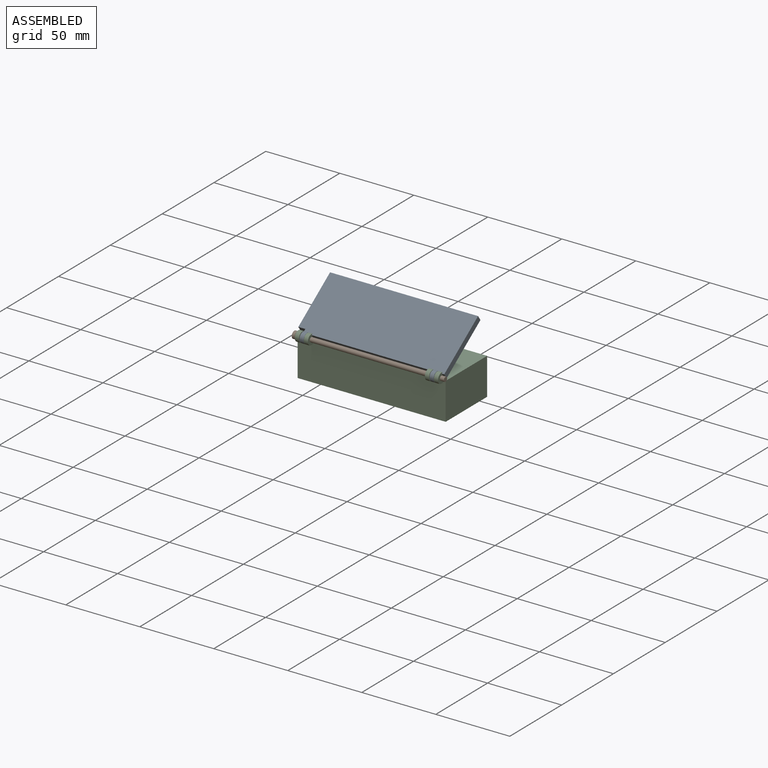
[diagram: assembled view]
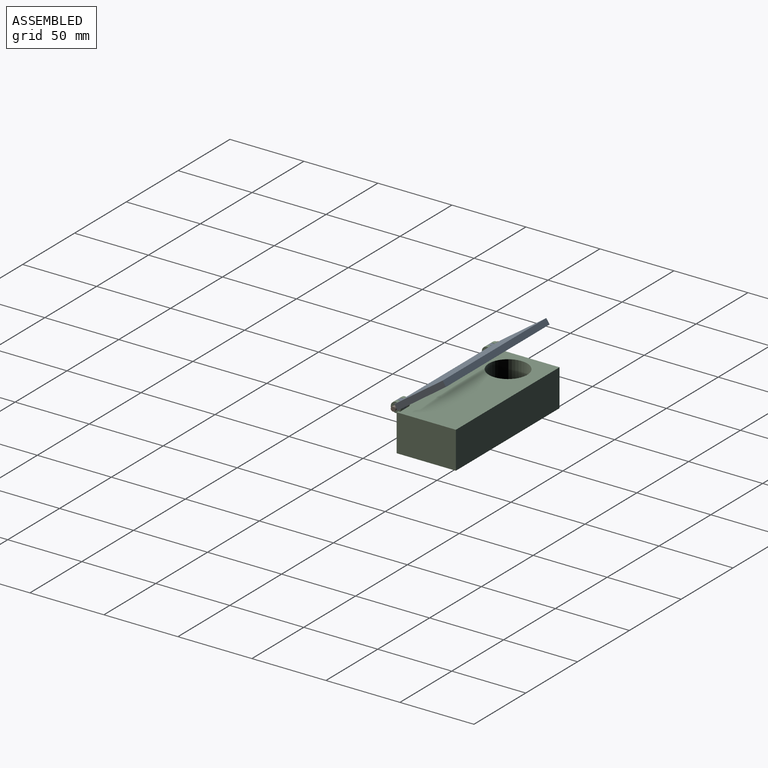
[diagram: assembled view, second angle]
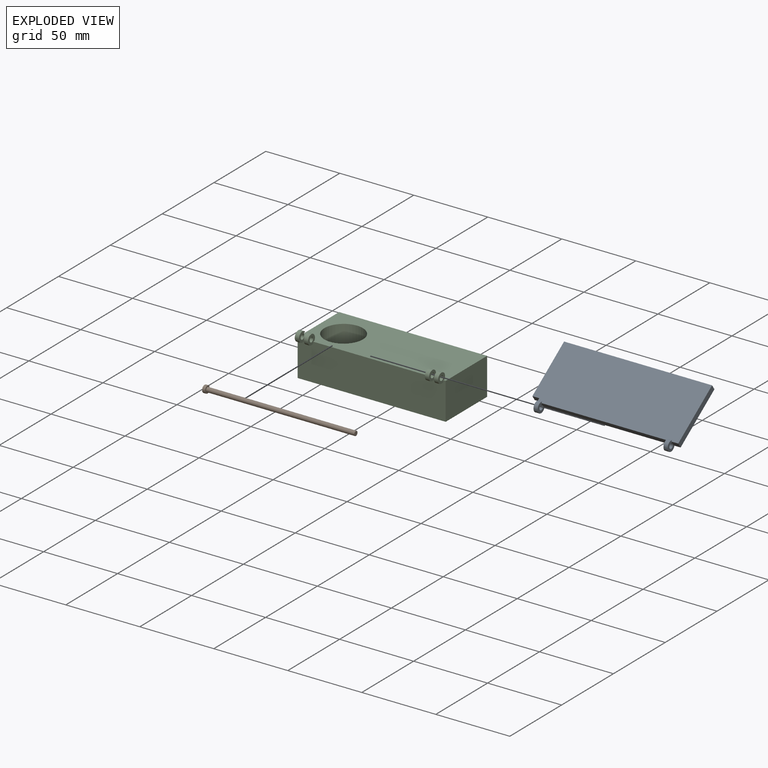
[diagram: exploded view]
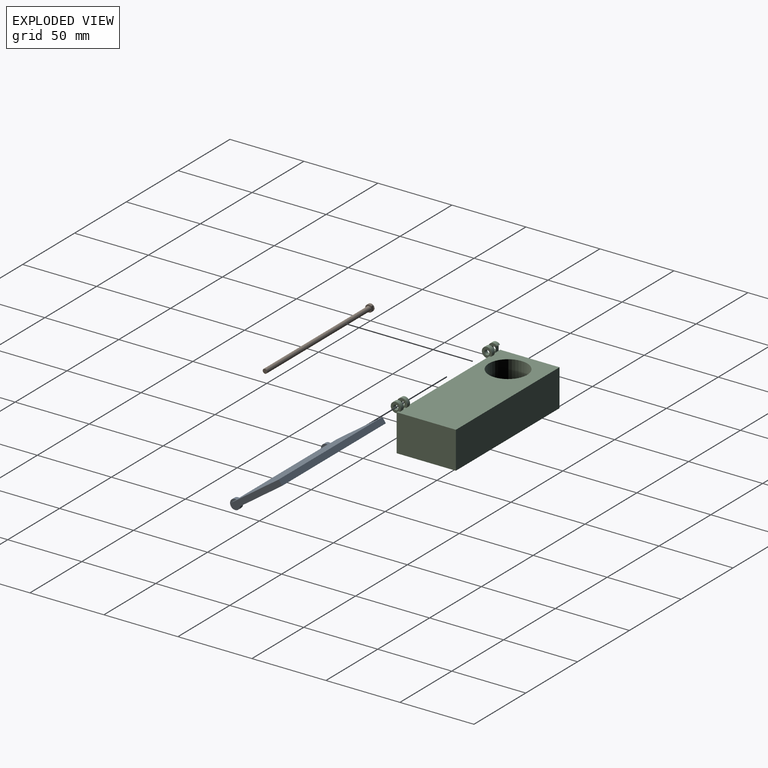
[diagram: exploded view, second angle]
ASSEMBLY  parts=3 mates=2
PART A: 16 faces, bbox 100x45.1x6.8 mm
  f0: plane 100x40mm, normal (0,0,1), area 3982.9mm2, adj f1,f2,f3,f4,f5,f7,f8,f9
  f1: plane 4.7x4mm, normal (0,-1,0), area 18.8mm2, adj f0,f2,f6,f13
  f2: plane 40x4mm, normal (1,0,0), area 160mm2, adj f0,f1,f3,f6
  f3: plane 100x4mm, normal (0,1,0), area 400mm2, adj f0,f2,f4,f6
  f4: plane 37.5x4mm, normal (-1,0,0), area 150mm2, adj f0,f3,f6,f15
  f5: plane 85x4mm, normal (0,-1,0), area 340mm2, adj f0,f6,f8,f12
  f6: plane 100x40mm, normal (0,0,-1), area 3982mm2, adj f1,f2,f3,f4,f5,f7,f8,f9
  f7: cylinder r=3.4mm len=6.8mm, axis (-1,0,0), area 47.8mm2, adj f0,f6,f8,f9
  f8: plane 6.8x6.23mm, normal (1,0,0), area 21.8mm2, adj f0,f5,f6,f7,f10
  f9: plane 7.61x6.8mm, normal (-1,0,0), area 31.8mm2, adj f0,f6,f7,f10,f15
  f10: cylinder r=1.65mm len=3.3mm, axis (-1,0,0), area 29mm2, adj f8,f9
  f11: cylinder r=3.4mm len=6.8mm, axis (1,0,0), area 47.8mm2, adj f0,f6,f12,f13
  f12: plane 6.8x6.23mm, normal (-1,0,0), area 21.8mm2, adj f0,f5,f6,f11,f14
  f13: plane 6.8x6.23mm, normal (1,0,0), area 21.8mm2, adj f0,f1,f6,f11,f14
  f14: cylinder r=1.65mm len=3.3mm, axis (1,0,0), area 29mm2, adj f12,f13
  f15: plane 4.7x4mm, normal (0,-1,0), area 18.8mm2, adj f0,f4,f6,f9
PART B: 7 faces, bbox 102.2x4.9x4.9 mm
  f0: cylinder r=2.43mm len=4.85mm, axis (1,0,0), area 24.3mm2, adj f1,f2,f5,f6
  f1: plane 4.85x4.85mm, normal (-1,0,0), area 18.5mm2, adj f0
  f2: plane 4.85x4.13mm, normal (1,0,0), area 9.5mm2, adj f0,f3,f6
  f3: cylinder r=1.53mm len=100.2mm, axis (-1,0,0), area 960.7mm2, adj f2,f4
  f4: plane 3.05x3.05mm, normal (1,0,0), area 7.3mm2, adj f3
  f5: plane 3.45x0.72mm, normal (1,0,0), area 1.7mm2, adj f0,f6
  f6: plane 3.45x1.6mm, normal (0,1,0), area 5.5mm2, adj f0,f2,f5
PART C: 26 faces, bbox 100x45.1x30.3 mm
  f0: plane 40x25mm, normal (-1,0,0), area 1000mm2, adj f1,f3,f4,f5
  f1: plane 100x25mm, normal (0,-1,0), area 2488.2mm2, adj f0,f2,f4,f5,f8,f9,f10,f12
  f2: plane 40x25mm, normal (1,0,0), area 1000mm2, adj f1,f3,f4,f5
  f3: plane 100x25mm, normal (0,1,0), area 2500mm2, adj f0,f2,f4,f5
  f4: plane 100x40mm, normal (0,0,-1), area 4000mm2, adj f0,f1,f2,f3
  f5: plane 100x40mm, normal (0,0,1), area 3459.6mm2, adj f0,f1,f2,f3,f6,f12,f13,f14
  f6: cylinder r=13mm len=26mm, axis (0,0,1), area 1633.6mm2, adj f5,f7
  f7: plane 26x26mm, normal (0,0,1), area 530.9mm2, adj f6
  f8: cylinder r=3.4mm len=6.8mm, axis (-1,0,0), area 43.5mm2, adj f1,f9,f10,f25
  f9: plane 6.8x6.06mm, normal (1,0,0), area 21.2mm2, adj f1,f8,f11,f24,f25
  f10: plane 6.8x6.06mm, normal (-1,0,0), area 21.2mm2, adj f1,f8,f11,f24,f25
  f11: cylinder r=1.65mm len=3.3mm, axis (-1,0,0), area 29mm2, adj f9,f10
  f12: cylinder r=3.4mm len=6.8mm, axis (-1,0,0), area 55.5mm2, adj f1,f5,f13,f14
  f13: plane 6.8x6.8mm, normal (1,0,0), area 27.1mm2, adj f1,f5,f12,f15
  f14: plane 6.8x6.8mm, normal (-1,0,0), area 27.1mm2, adj f1,f5,f12,f15
  f15: cylinder r=1.65mm len=3.3mm, axis (-1,0,0), area 29mm2, adj f13,f14
  f16: cylinder r=3.4mm len=6.8mm, axis (1,0,0), area 55.5mm2, adj f1,f5,f17,f18
  f17: plane 6.8x6.8mm, normal (-1,0,0), area 27.1mm2, adj f1,f5,f16,f19
  f18: plane 6.8x6.8mm, normal (1,0,0), area 27.1mm2, adj f1,f5,f16,f19
  f19: cylinder r=1.65mm len=3.3mm, axis (1,0,0), area 29mm2, adj f17,f18
  f20: cylinder r=3.4mm len=6.8mm, axis (1,0,0), area 55.5mm2, adj f1,f5,f21,f22
  f21: plane 6.8x6.8mm, normal (-1,0,0), area 27.1mm2, adj f1,f5,f20,f23
  f22: plane 6.8x6.8mm, normal (1,0,0), area 27.1mm2, adj f1,f5,f20,f23
  f23: cylinder r=1.65mm len=3.3mm, axis (1,0,0), area 29mm2, adj f21,f22
  f24: plane 4x2.8mm, normal (0,1,0), area 11.2mm2, adj f5,f9,f10,f25
  f25: plane 2.8x0.96mm, normal (0,0,-1), area 2.7mm2, adj f8,f9,f10,f24
PLACE A rot(axis=(1,0,0),35.3deg) t=(-12.85,-19.21,27.92)mm
PLACE B t=(-13.65,-16.31,15.03)mm
PLACE C t=(-12.95,-16.31,15.03)mm fixed
MATE revolute A.f7 <-> C.f8  axis (1,0,0) through (32.45,-38.01,16.92)mm
MATE revolute B.f0 <-> C.f8  axis (1,0,0) through (38.15,-38.01,16.92)mm
